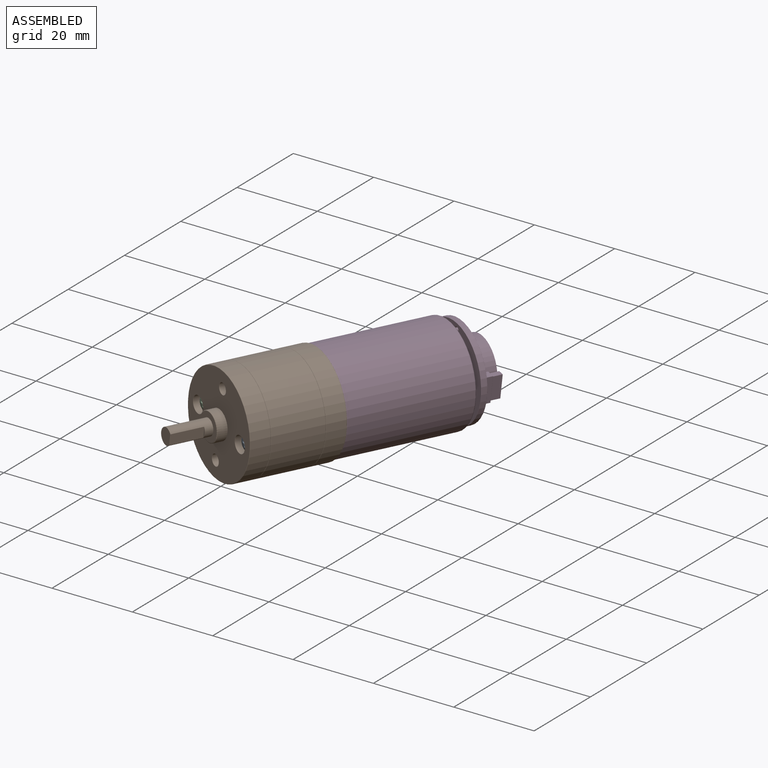
[diagram: assembled view]
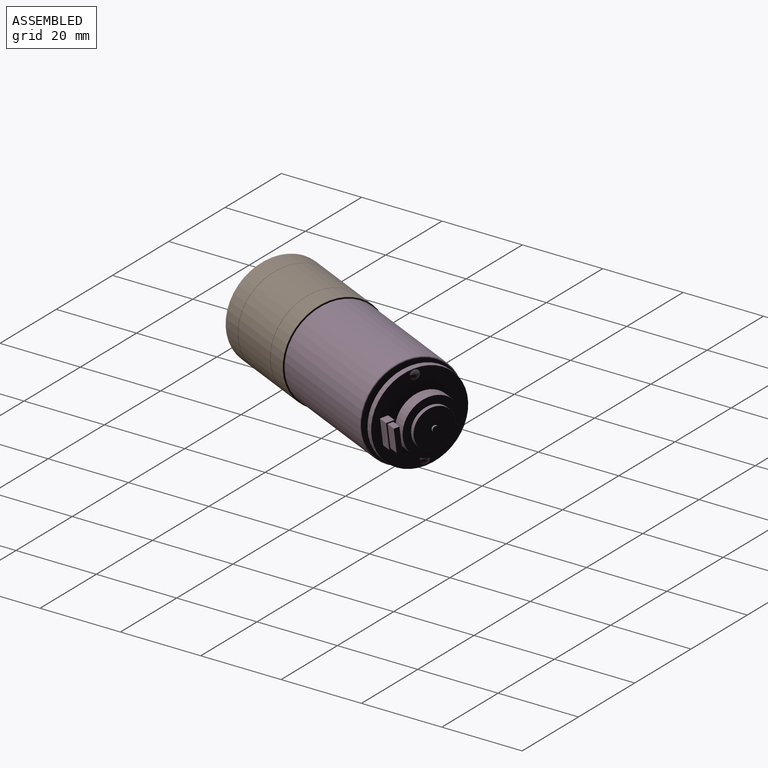
[diagram: assembled view, second angle]
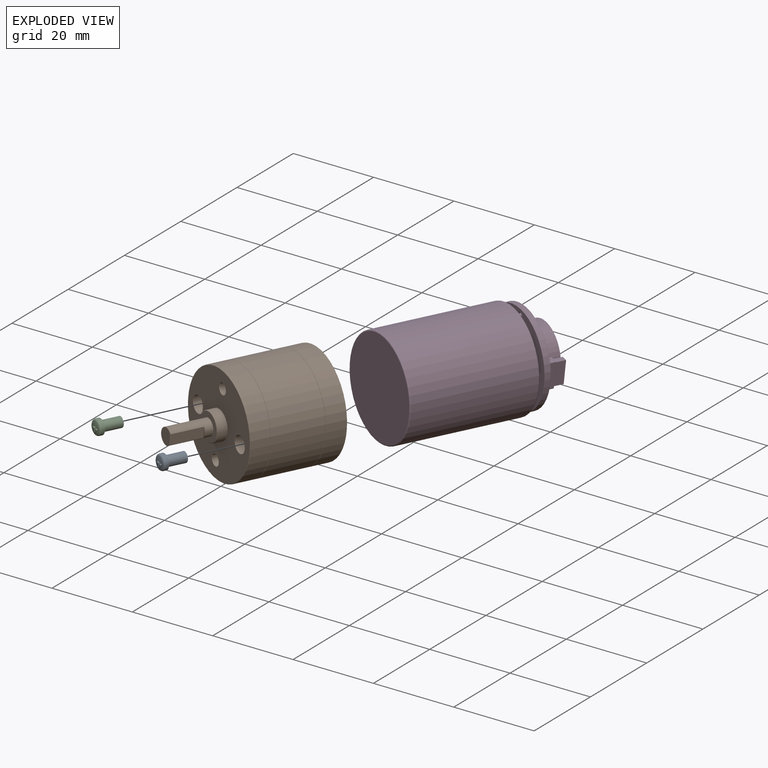
[diagram: exploded view]
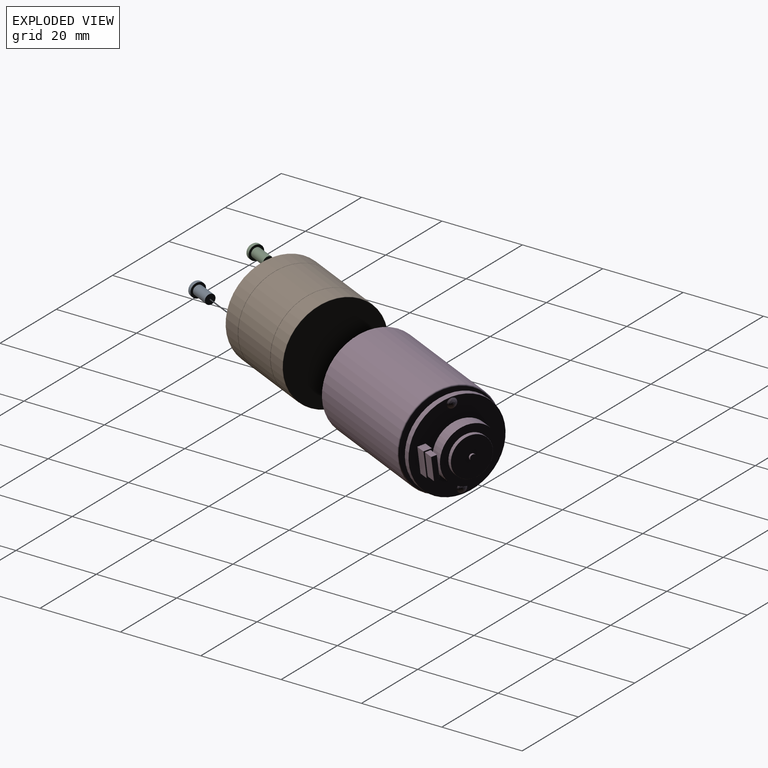
[diagram: exploded view, second angle]
ASSEMBLY  parts=4 mates=6
PART A: 67 faces, bbox 4x6.2x4 mm
  f0: torus R=1.35mm, axis (0,1,0), area 7.2mm2, adj f1,f5
  f1: sphere r=6.43mm, area 5.4mm2, adj f0,f21,f22,f25,f26,f31,f36,f39
  f2: plane 2.51x2.51mm, normal (0,1,0), area 4.9mm2, adj f3
  f3: cylinder r=1.25mm len=4.8mm, axis (0,1,0), area 37.8mm2, adj f2,f4
  f4: plane 3.69x3.69mm, normal (0,1,0), area 5.8mm2, adj f3,f5
  f5: cylinder r=1.85mm len=3.69mm, axis (0,1,0), area 8.5mm2, adj f0,f4
  f6: plane 0.88x0.72mm, normal (0,-0.09,-1), area 0.6mm2, adj f51,f57,f60,f61
  f7: plane 0.88x0.72mm, normal (1,-0.09,0), area 0.6mm2, adj f43,f47,f50,f51
  f8: plane 0.86x0.2mm, normal (0,-0.09,-1), area 0.1mm2, adj f18,f37,f42,f43
  f9: plane 0.88x0.72mm, normal (-1,-0.09,0), area 0.6mm2, adj f27,f33,f36,f37
  f10: plane 0.88x0.72mm, normal (0,-0.09,-1), area 0.6mm2, adj f19,f23,f26,f27
  f11: plane 0.86x0.2mm, normal (-1,-0.09,0), area 0.1mm2, adj f18,f19,f20,f21
  f12: plane 0.88x0.72mm, normal (0,-0.09,1), area 0.6mm2, adj f20,f24,f30,f31
  f13: plane 0.88x0.72mm, normal (-1,-0.09,0), area 0.6mm2, adj f30,f34,f38,f39
  f14: plane 0.86x0.2mm, normal (0,-0.09,1), area 0.1mm2, adj f18,f38,f44,f45
  f15: plane 0.88x0.72mm, normal (1,-0.09,0), area 0.6mm2, adj f44,f48,f54,f55
  f16: plane 0.88x0.72mm, normal (0,-0.09,1), area 0.6mm2, adj f54,f58,f62,f63
  f17: plane 0.86x0.2mm, normal (1,-0.09,0), area 0.1mm2, adj f18,f61,f62,f66
  f18: plane 1.66x1.66mm, normal (0,-1,0), area 0.2mm2, adj f8,f11,f14,f17,f19,f20,f23,f24
  f19: cylinder r=0.05mm len=0.87mm, axis (-0.09,0.99,-0.09), area 0.1mm2, adj f10,f11,f18,f22,f23
  f20: cylinder r=0.05mm len=0.87mm, axis (-0.09,0.99,0.09), area 0.1mm2, adj f11,f12,f18,f24,f25
  f21: torus R=6.36mm, axis (1,0.09,0), area 0mm2, adj f1,f11,f22,f25
  f22: bspline ~0.12x0.12mm, area 0mm2, adj f1,f19,f21,f26
  f23: cylinder r=0.05mm len=0.7mm, axis (1,0,0), area 0mm2, adj f10,f18,f19,f28
  f24: cylinder r=0.05mm len=0.7mm, axis (-1,0,0), area 0mm2, adj f12,f18,f20,f29
  f25: bspline ~0.12x0.12mm, area 0mm2, adj f1,f20,f21,f31
  f26: torus R=6.37mm, axis (0,0.09,1), area 0mm2, adj f1,f10,f22,f32
  f27: cylinder r=0.05mm len=0.88mm, axis (0.09,-0.99,0.09), area 0.1mm2, adj f9,f10,f28,f32
  f28: bspline ~0.12x0.12mm, area 0mm2, adj f18,f23,f27,f33
  f29: bspline ~0.12x0.12mm, area 0mm2, adj f18,f24,f30,f34
  f30: cylinder r=0.05mm len=0.88mm, axis (0.09,-0.99,-0.09), area 0.1mm2, adj f12,f13,f29,f35
  f31: torus R=6.37mm, axis (0,0.09,-1), area 0mm2, adj f1,f12,f25,f35
  f32: sphere r=0.05mm, area 0mm2, adj f26,f27,f36
  f33: cylinder r=0.05mm len=0.7mm, axis (0,0,-1), area 0mm2, adj f9,f18,f28,f37
  f34: cylinder r=0.05mm len=0.7mm, axis (0,0,-1), area 0mm2, adj f13,f18,f29,f38
  f35: sphere r=0.05mm, area 0mm2, adj f30,f31,f39
  f36: torus R=6.37mm, axis (1,0.09,0), area 0mm2, adj f1,f9,f32,f40
  f37: cylinder r=0.05mm len=0.87mm, axis (-0.09,0.99,-0.09), area 0.1mm2, adj f8,f9,f18,f33,f40
  f38: cylinder r=0.05mm len=0.87mm, axis (-0.09,0.99,0.09), area 0.1mm2, adj f13,f14,f18,f34,f41
  f39: torus R=6.37mm, axis (1,0.09,0), area 0mm2, adj f1,f13,f35,f41
  f40: bspline ~0.12x0.12mm, area 0mm2, adj f1,f36,f37,f42
  f41: bspline ~0.12x0.12mm, area 0mm2, adj f1,f38,f39,f45
  f42: torus R=6.36mm, axis (0,0.09,1), area 0mm2, adj f1,f8,f40,f46
  f43: cylinder r=0.05mm len=0.87mm, axis (0.09,0.99,-0.09), area 0.1mm2, adj f7,f8,f18,f46,f47
  f44: cylinder r=0.05mm len=0.87mm, axis (0.09,0.99,0.09), area 0.1mm2, adj f14,f15,f18,f48,f49
  f45: torus R=6.36mm, axis (0,0.09,-1), area 0mm2, adj f1,f14,f41,f49
  f46: bspline ~0.12x0.12mm, area 0mm2, adj f1,f42,f43,f50
  f47: cylinder r=0.05mm len=0.7mm, axis (0,0,1), area 0mm2, adj f7,f18,f43,f52
  f48: cylinder r=0.05mm len=0.7mm, axis (0,0,1), area 0mm2, adj f15,f18,f44,f53
  f49: bspline ~0.12x0.12mm, area 0mm2, adj f1,f44,f45,f55
  f50: torus R=6.37mm, axis (-1,0.09,0), area 0mm2, adj f1,f7,f46,f56
  f51: cylinder r=0.05mm len=0.88mm, axis (-0.09,-0.99,0.09), area 0.1mm2, adj f6,f7,f52,f56
  f52: bspline ~0.12x0.12mm, area 0mm2, adj f18,f47,f51,f57
  f53: bspline ~0.12x0.12mm, area 0mm2, adj f18,f48,f54,f58
  f54: cylinder r=0.05mm len=0.88mm, axis (-0.09,-0.99,-0.09), area 0.1mm2, adj f15,f16,f53,f59
  f55: torus R=6.37mm, axis (-1,0.09,0), area 0mm2, adj f1,f15,f49,f59
  f56: sphere r=0.05mm, area 0mm2, adj f50,f51,f60
  f57: cylinder r=0.05mm len=0.7mm, axis (1,0,0), area 0mm2, adj f6,f18,f52,f61
  f58: cylinder r=0.05mm len=0.7mm, axis (-1,0,0), area 0mm2, adj f16,f18,f53,f62
  f59: sphere r=0.05mm, area 0mm2, adj f54,f55,f63
  f60: torus R=6.37mm, axis (0,0.09,1), area 0mm2, adj f1,f6,f56,f64
  f61: cylinder r=0.05mm len=0.87mm, axis (0.09,0.99,-0.09), area 0.1mm2, adj f6,f17,f18,f57,f64
  f62: cylinder r=0.05mm len=0.87mm, axis (0.09,0.99,0.09), area 0.1mm2, adj f16,f17,f18,f58,f65
  f63: torus R=6.37mm, axis (0,0.09,-1), area 0mm2, adj f1,f16,f59,f65
  f64: bspline ~0.12x0.12mm, area 0mm2, adj f1,f60,f61,f66
  f65: bspline ~0.12x0.12mm, area 0mm2, adj f1,f62,f63,f66
  f66: torus R=6.36mm, axis (-1,0.09,0), area 0mm2, adj f1,f17,f64,f65
PART B: 49 faces, bbox 27.1x35.5x27.1 mm
  f0: cylinder r=2mm len=10mm, axis (0,1,0), area 102.1mm2, adj f1,f4,f5,f6,f8,f9,f10,f11
  f1: plane 4x3.45mm, normal (0,-1,0), area 11.5mm2, adj f0,f4
  f2: plane 2.37x0.4mm, normal (0,-1,0), area 0.6mm2, adj f7,f10
  f3: plane 7.9x2.61mm, normal (0,0,1), area 20.6mm2, adj f4,f5,f6,f7
  f4: cylinder r=0.05mm len=2.76mm, axis (-1,0,0), area 0.2mm2, adj f0,f1,f3,f5,f6
  f5: cylinder r=0.05mm len=7.93mm, axis (0,1,0), area 0.3mm2, adj f0,f3,f4,f8
  f6: cylinder r=0.05mm len=7.93mm, axis (0,1,0), area 0.3mm2, adj f0,f3,f4,f9
  f7: cylinder r=0.05mm len=2.61mm, axis (-1,0,0), area 0.2mm2, adj f2,f3,f8,f9
  f8: bspline ~0.17x0.12mm, area 0mm2, adj f0,f5,f7,f10
  f9: bspline ~0.2x0.14mm, area 0mm2, adj f0,f6,f7,f10
  f10: torus R=1.95mm, axis (0,1,0), area 0.2mm2, adj f0,f2,f8,f9
  f11: plane 6.7x6.7mm, normal (0,-1,0), area 22.7mm2, adj f0,f13
  f12: cylinder r=3.5mm len=7mm, axis (0,1,0), area 51.7mm2, adj f13,f15
  f13: torus R=3.35mm, axis (0,-1,0), area 5.1mm2, adj f11,f12
  f14: cylinder r=12.5mm len=25mm, axis (0,1,0), area 377mm2, adj f16,f17
  f15: plane 24.8x24.8mm, normal (0,-1,0), area 405.8mm2, adj f12,f17,f37,f39,f41,f47
  f16: torus R=12.4mm, axis (0,-1,0), area 12.3mm2, adj f14,f20
  f17: torus R=12.4mm, axis (0,-1,0), area 12.3mm2, adj f14,f15
  f18: cylinder r=12.5mm len=25mm, axis (0,-1,0), area 1005.3mm2, adj f19,f20
  f19: torus R=12.4mm, axis (0,1,0), area 12.3mm2, adj f18,f23
  f20: torus R=12.4mm, axis (0,1,0), area 12.3mm2, adj f16,f18
  f21: cylinder r=12.5mm len=25mm, axis (0,-1,0), area 377mm2, adj f23,f24
  f22: plane 24.8x24.8mm, normal (0,1,0), area 483.1mm2, adj f24
  f23: torus R=12.4mm, axis (0,1,0), area 12.3mm2, adj f19,f21
  f24: torus R=12.4mm, axis (0,1,0), area 12.3mm2, adj f21,f22
  f25: cylinder r=1.35mm len=7.4mm, axis (0,-1,0), area 62.8mm2, adj f39,f40
  f26: plane 2.6x2.6mm, normal (0,-1,0), area 5.3mm2, adj f40
  f27: cylinder r=1.35mm len=7.4mm, axis (0,-1,0), area 62.8mm2, adj f37,f38
  f28: plane 2.6x2.6mm, normal (0,-1,0), area 5.3mm2, adj f38
  f29: cylinder r=2mm len=4mm, axis (0,-1,0), area 30.2mm2, adj f41,f42
  f30: plane 3.9x3.9mm, normal (0,-1,0), area 5.8mm2, adj f42,f43
  f31: plane 2.6x2.6mm, normal (0,-1,0), area 5.3mm2, adj f44
  f32: cylinder r=1.35mm len=4.9mm, axis (0,-1,0), area 41.6mm2, adj f43,f44
  f33: plane 3.9x3.9mm, normal (0,-1,0), area 5.8mm2, adj f45,f48
  f34: cylinder r=2mm len=4mm, axis (0,-1,0), area 30.2mm2, adj f47,f48
  f35: plane 2.6x2.6mm, normal (0,-1,0), area 5.3mm2, adj f46
  f36: cylinder r=1.35mm len=4.9mm, axis (0,-1,0), area 41.6mm2, adj f45,f46
  f37: torus R=1.4mm, axis (0,-1,0), area 0.7mm2, adj f15,f27
  f38: torus R=1.3mm, axis (0,-1,0), area 0.7mm2, adj f27,f28
  f39: torus R=1.4mm, axis (0,-1,0), area 0.7mm2, adj f15,f25
  f40: torus R=1.3mm, axis (0,-1,0), area 0.7mm2, adj f25,f26
  f41: torus R=2.05mm, axis (0,-1,0), area 1mm2, adj f15,f29
  f42: torus R=1.95mm, axis (0,-1,0), area 1mm2, adj f29,f30
  f43: torus R=1.4mm, axis (0,-1,0), area 0.7mm2, adj f30,f32
  f44: torus R=1.3mm, axis (0,-1,0), area 0.7mm2, adj f31,f32
  f45: torus R=1.4mm, axis (0,-1,0), area 0.7mm2, adj f33,f36
  f46: torus R=1.3mm, axis (0,-1,0), area 0.7mm2, adj f35,f36
  f47: torus R=2.05mm, axis (0,-1,0), area 1mm2, adj f15,f34
  f48: torus R=1.95mm, axis (0,-1,0), area 1mm2, adj f33,f34
PART C: 67 faces, bbox 4x6.2x4 mm
  f0: torus R=1.35mm, axis (0,1,0), area 7.2mm2, adj f1,f5
  f1: sphere r=6.43mm, area 5.4mm2, adj f0,f21,f22,f25,f26,f31,f36,f39
  f2: plane 2.51x2.51mm, normal (0,1,0), area 4.9mm2, adj f3
  f3: cylinder r=1.25mm len=4.8mm, axis (0,1,0), area 37.8mm2, adj f2,f4
  f4: plane 3.69x3.69mm, normal (0,1,0), area 5.8mm2, adj f3,f5
  f5: cylinder r=1.85mm len=3.69mm, axis (0,1,0), area 8.5mm2, adj f0,f4
  f6: plane 0.88x0.72mm, normal (0,-0.09,1), area 0.6mm2, adj f51,f57,f60,f61
  f7: plane 0.88x0.72mm, normal (-1,-0.09,0), area 0.6mm2, adj f43,f47,f50,f51
  f8: plane 0.86x0.2mm, normal (0,-0.09,1), area 0.1mm2, adj f18,f37,f42,f43
  f9: plane 0.88x0.72mm, normal (1,-0.09,0), area 0.6mm2, adj f27,f33,f36,f37
  f10: plane 0.88x0.72mm, normal (0,-0.09,1), area 0.6mm2, adj f19,f23,f26,f27
  f11: plane 0.86x0.2mm, normal (1,-0.09,0), area 0.1mm2, adj f18,f19,f20,f21
  f12: plane 0.88x0.72mm, normal (0,-0.09,-1), area 0.6mm2, adj f20,f24,f30,f31
  f13: plane 0.88x0.72mm, normal (1,-0.09,0), area 0.6mm2, adj f30,f34,f38,f39
  f14: plane 0.86x0.2mm, normal (0,-0.09,-1), area 0.1mm2, adj f18,f38,f44,f45
  f15: plane 0.88x0.72mm, normal (-1,-0.09,0), area 0.6mm2, adj f44,f48,f54,f55
  f16: plane 0.88x0.72mm, normal (0,-0.09,-1), area 0.6mm2, adj f54,f58,f62,f63
  f17: plane 0.86x0.2mm, normal (-1,-0.09,0), area 0.1mm2, adj f18,f61,f62,f66
  f18: plane 1.66x1.66mm, normal (0,-1,0), area 0.2mm2, adj f8,f11,f14,f17,f19,f20,f23,f24
  f19: cylinder r=0.05mm len=0.87mm, axis (0.09,0.99,0.09), area 0.1mm2, adj f10,f11,f18,f22,f23
  f20: cylinder r=0.05mm len=0.87mm, axis (0.09,0.99,-0.09), area 0.1mm2, adj f11,f12,f18,f24,f25
  f21: torus R=6.36mm, axis (-1,0.09,0), area 0mm2, adj f1,f11,f22,f25
  f22: bspline ~0.12x0.12mm, area 0mm2, adj f1,f19,f21,f26
  f23: cylinder r=0.05mm len=0.7mm, axis (-1,0,0), area 0mm2, adj f10,f18,f19,f28
  f24: cylinder r=0.05mm len=0.7mm, axis (1,0,0), area 0mm2, adj f12,f18,f20,f29
  f25: bspline ~0.12x0.12mm, area 0mm2, adj f1,f20,f21,f31
  f26: torus R=6.37mm, axis (0,0.09,-1), area 0mm2, adj f1,f10,f22,f32
  f27: cylinder r=0.05mm len=0.88mm, axis (-0.09,-0.99,-0.09), area 0.1mm2, adj f9,f10,f28,f32
  f28: bspline ~0.12x0.12mm, area 0mm2, adj f18,f23,f27,f33
  f29: bspline ~0.12x0.12mm, area 0mm2, adj f18,f24,f30,f34
  f30: cylinder r=0.05mm len=0.88mm, axis (-0.09,-0.99,0.09), area 0.1mm2, adj f12,f13,f29,f35
  f31: torus R=6.37mm, axis (0,0.09,1), area 0mm2, adj f1,f12,f25,f35
  f32: sphere r=0.05mm, area 0mm2, adj f26,f27,f36
  f33: cylinder r=0.05mm len=0.7mm, axis (0,0,1), area 0mm2, adj f9,f18,f28,f37
  f34: cylinder r=0.05mm len=0.7mm, axis (0,0,1), area 0mm2, adj f13,f18,f29,f38
  f35: sphere r=0.05mm, area 0mm2, adj f30,f31,f39
  f36: torus R=6.37mm, axis (-1,0.09,0), area 0mm2, adj f1,f9,f32,f40
  f37: cylinder r=0.05mm len=0.87mm, axis (0.09,0.99,0.09), area 0.1mm2, adj f8,f9,f18,f33,f40
  f38: cylinder r=0.05mm len=0.87mm, axis (0.09,0.99,-0.09), area 0.1mm2, adj f13,f14,f18,f34,f41
  f39: torus R=6.37mm, axis (-1,0.09,0), area 0mm2, adj f1,f13,f35,f41
  f40: bspline ~0.12x0.12mm, area 0mm2, adj f1,f36,f37,f42
  f41: bspline ~0.12x0.12mm, area 0mm2, adj f1,f38,f39,f45
  f42: torus R=6.36mm, axis (0,0.09,-1), area 0mm2, adj f1,f8,f40,f46
  f43: cylinder r=0.05mm len=0.87mm, axis (-0.09,0.99,0.09), area 0.1mm2, adj f7,f8,f18,f46,f47
  f44: cylinder r=0.05mm len=0.87mm, axis (-0.09,0.99,-0.09), area 0.1mm2, adj f14,f15,f18,f48,f49
  f45: torus R=6.36mm, axis (0,0.09,1), area 0mm2, adj f1,f14,f41,f49
  f46: bspline ~0.12x0.12mm, area 0mm2, adj f1,f42,f43,f50
  f47: cylinder r=0.05mm len=0.7mm, axis (0,0,-1), area 0mm2, adj f7,f18,f43,f52
  f48: cylinder r=0.05mm len=0.7mm, axis (0,0,-1), area 0mm2, adj f15,f18,f44,f53
  f49: bspline ~0.12x0.12mm, area 0mm2, adj f1,f44,f45,f55
  f50: torus R=6.37mm, axis (1,0.09,0), area 0mm2, adj f1,f7,f46,f56
  f51: cylinder r=0.05mm len=0.88mm, axis (0.09,-0.99,-0.09), area 0.1mm2, adj f6,f7,f52,f56
  f52: bspline ~0.12x0.12mm, area 0mm2, adj f18,f47,f51,f57
  f53: bspline ~0.12x0.12mm, area 0mm2, adj f18,f48,f54,f58
  f54: cylinder r=0.05mm len=0.88mm, axis (0.09,-0.99,0.09), area 0.1mm2, adj f15,f16,f53,f59
  f55: torus R=6.37mm, axis (1,0.09,0), area 0mm2, adj f1,f15,f49,f59
  f56: sphere r=0.05mm, area 0mm2, adj f50,f51,f60
  f57: cylinder r=0.05mm len=0.7mm, axis (-1,0,0), area 0mm2, adj f6,f18,f52,f61
  f58: cylinder r=0.05mm len=0.7mm, axis (1,0,0), area 0mm2, adj f16,f18,f53,f62
  f59: sphere r=0.05mm, area 0mm2, adj f54,f55,f63
  f60: torus R=6.37mm, axis (0,0.09,-1), area 0mm2, adj f1,f6,f56,f64
  f61: cylinder r=0.05mm len=0.87mm, axis (-0.09,0.99,0.09), area 0.1mm2, adj f6,f17,f18,f57,f64
  f62: cylinder r=0.05mm len=0.87mm, axis (-0.09,0.99,-0.09), area 0.1mm2, adj f16,f17,f18,f58,f65
  f63: torus R=6.37mm, axis (0,0.09,1), area 0mm2, adj f1,f16,f59,f65
  f64: bspline ~0.12x0.12mm, area 0mm2, adj f1,f60,f61,f66
  f65: bspline ~0.12x0.12mm, area 0mm2, adj f1,f62,f63,f66
  f66: torus R=6.36mm, axis (1,0.09,0), area 0mm2, adj f1,f17,f64,f65
PART D: 56 faces, bbox 26.4x40.3x26.4 mm
  f0: cylinder r=0.75mm len=1.5mm, axis (0,-1,0), area 2.4mm2, adj f1,f31
  f1: plane 1.5x1.5mm, normal (0,1,0), area 1.8mm2, adj f0
  f2: plane 2.4x1.89mm, normal (-1,0,0), area 4.5mm2, adj f20,f21,f23,f25
  f3: plane 6.28x2.4mm, normal (0,0,1), area 15.1mm2, adj f15,f16,f21,f22
  f4: plane 2.4x1.89mm, normal (1,0,0), area 4.5mm2, adj f12,f14,f16,f17
  f5: plane 6.28x2.5mm, normal (0,0,-1), area 15.7mm2, adj f6,f14,f23,f38
  f6: plane 6.28x1.94mm, normal (0,1,0), area 4.3mm2, adj f5,f7,f8,f9,f10,f12,f15,f20
  f7: plane 2.45x1.38mm, normal (-1,0,0), area 3.4mm2, adj f6,f8,f10,f26
  f8: plane 5.73x2.45mm, normal (0,0,-1), area 14mm2, adj f6,f7,f9,f28
  f9: plane 2.45x1.38mm, normal (1,0,0), area 3.4mm2, adj f6,f8,f10,f29
  f10: plane 5.73x2.45mm, normal (0,0,1), area 14mm2, adj f6,f7,f9,f27
  f11: plane 5.63x1.28mm, normal (0,1,0), area 7.2mm2, adj f26,f27,f28,f29
  f12: cylinder r=0.05mm len=1.94mm, axis (0,0,1), area 0.2mm2, adj f4,f6,f13,f14
  f13: sphere r=0.05mm, area 0mm2, adj f12,f15,f16
  f14: cylinder r=0.05mm len=2.5mm, axis (0,-1,0), area 0.2mm2, adj f4,f5,f12,f17
  f15: cylinder r=0.05mm len=6.28mm, axis (-1,0,0), area 0.5mm2, adj f3,f6,f13,f18
  f16: cylinder r=0.05mm len=2.4mm, axis (0,-1,0), area 0.2mm2, adj f3,f4,f13,f19
  f17: cylinder r=0.05mm len=1.94mm, axis (0,0,-1), area 0.2mm2, adj f4,f14,f19,f38
  f18: sphere r=0.05mm, area 0mm2, adj f15,f20,f21
  f19: sphere r=0.05mm, area 0mm2, adj f16,f17,f22
  f20: cylinder r=0.05mm len=1.94mm, axis (0,0,-1), area 0.2mm2, adj f2,f6,f18,f23
  f21: cylinder r=0.05mm len=2.4mm, axis (0,-1,0), area 0.2mm2, adj f2,f3,f18,f24
  f22: cylinder r=0.05mm len=6.28mm, axis (1,0,0), area 0.5mm2, adj f3,f19,f24,f38
  f23: cylinder r=0.05mm len=2.5mm, axis (0,-1,0), area 0.2mm2, adj f2,f5,f20,f25
  f24: sphere r=0.05mm, area 0mm2, adj f21,f22,f25
  f25: cylinder r=0.05mm len=1.94mm, axis (0,0,1), area 0.2mm2, adj f2,f23,f24,f38
  f26: cylinder r=0.05mm len=1.38mm, axis (0,0,1), area 0.1mm2, adj f7,f11,f27,f28
  f27: cylinder r=0.05mm len=5.73mm, axis (1,0,0), area 0.4mm2, adj f10,f11,f26,f29
  f28: cylinder r=0.05mm len=5.73mm, axis (-1,0,0), area 0.4mm2, adj f8,f11,f26,f29
  f29: cylinder r=0.05mm len=1.38mm, axis (0,0,-1), area 0.1mm2, adj f9,f11,f27,f28
  f30: cylinder r=5mm len=10mm, axis (0,-1,0), area 29.8mm2, adj f32,f34
  f31: plane 9.9x9.9mm, normal (0,1,0), area 75.2mm2, adj f0,f32
  f32: torus R=4.95mm, axis (0,1,0), area 2.5mm2, adj f30,f31
  f33: cylinder r=7mm len=14mm, axis (0,-1,0), area 131.9mm2, adj f34,f35
  f34: plane 14x14mm, normal (0,1,0), area 75.4mm2, adj f30,f33
  f35: plane 14x14mm, normal (0,-1,0), area 152.2mm2, adj f33,f52
  f36: plane 1.5x1.5mm, normal (0,-1,0), area 1.1mm2, adj f37,f42
  f37: cylinder r=0.46mm len=3mm, axis (0,-1,0), area 8.7mm2, adj f36,f47
  f38: plane 22.9x22.9mm, normal (0,1,0), area 385.2mm2, adj f5,f17,f22,f25,f41,f45,f46,f55
  f39: plane 22.9x22.9mm, normal (0,-1,0), area 403.4mm2, adj f41,f42,f43,f44
  f40: cylinder r=11.5mm len=23mm, axis (0,-1,0), area 101.2mm2, adj f44,f45
  f41: cylinder r=1.25mm len=2.5mm, axis (0,-1,0), area 11.8mm2, adj f38,f39
  f42: cylinder r=0.75mm len=1.5mm, axis (0,-1,0), area 7.1mm2, adj f36,f39
  f43: cylinder r=0.75mm len=1.5mm, axis (0,-1,0), area 7.1mm2, adj f39,f54
  f44: torus R=11.45mm, axis (0,1,0), area 5.7mm2, adj f39,f40
  f45: torus R=11.45mm, axis (0,1,0), area 5.7mm2, adj f38,f40
  f46: sphere r=2.11mm, area 5.3mm2, adj f38
  f47: plane 23.8x23.8mm, normal (0,1,0), area 441.8mm2, adj f37,f50,f52,f53
  f48: cylinder r=12.2mm len=30.2mm, axis (0,-1,0), area 2315mm2, adj f50,f51
  f49: plane 23.8x23.8mm, normal (0,-1,0), area 444.9mm2, adj f51
  f50: torus R=11.9mm, axis (0,1,0), area 35.8mm2, adj f47,f48
  f51: torus R=11.9mm, axis (0,1,0), area 35.8mm2, adj f48,f49
  f52: cylinder r=0.75mm len=5mm, axis (0,-1,0), area 23.6mm2, adj f35,f47
  f53: cylinder r=0.46mm len=3mm, axis (0,-1,0), area 8.7mm2, adj f47,f54
  f54: plane 1.5x1.5mm, normal (0,-1,0), area 1.1mm2, adj f43,f53
  f55: sphere r=2.11mm, area 5.3mm2, adj f38
PLACE A rot(axis=(-0.22,-0.95,-0.23),85.1deg) t=(24.02,61.24,38.06)mm
PLACE B rot(axis=(0.2,0.96,-0.19),100.1deg) t=(23.98,61.16,38.06)mm
PLACE C rot(axis=(-0.22,-0.95,-0.23),85.1deg) t=(24.02,61.24,38.06)mm
PLACE D rot(axis=(0.2,0.96,-0.19),100.1deg) t=(23.98,61.15,38.06)mm
MATE planar C.f0 <-> B.f29  axis (0.41,0.91,-0.02) through (15.29,62.4,39.24)mm
MATE revolute B.f0 <-> D.f0  axis (0.41,0.91,-0.02) through (31.44,77.54,37.66)mm
MATE slider A.f0 <-> B.f34  axis (0.41,0.91,-0.02) through (31.6,57.55,36.94)mm
MATE slider C.f0 <-> B.f29  axis (0.41,0.91,-0.02) through (16.28,64.58,39.18)mm
MATE planar A.f0 <-> B.f34  axis (0.41,0.91,-0.02) through (30.6,55.37,37)mm
MATE parallel B.f3 <-> D.f3  axis (0.9,-0.41,-0.13) through (19.74,48.26,38.16)mm
